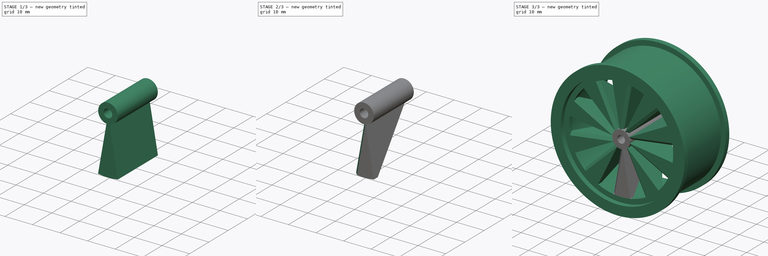
[diagram: build sequence overview — one tinted view per stage of 3, left to right]
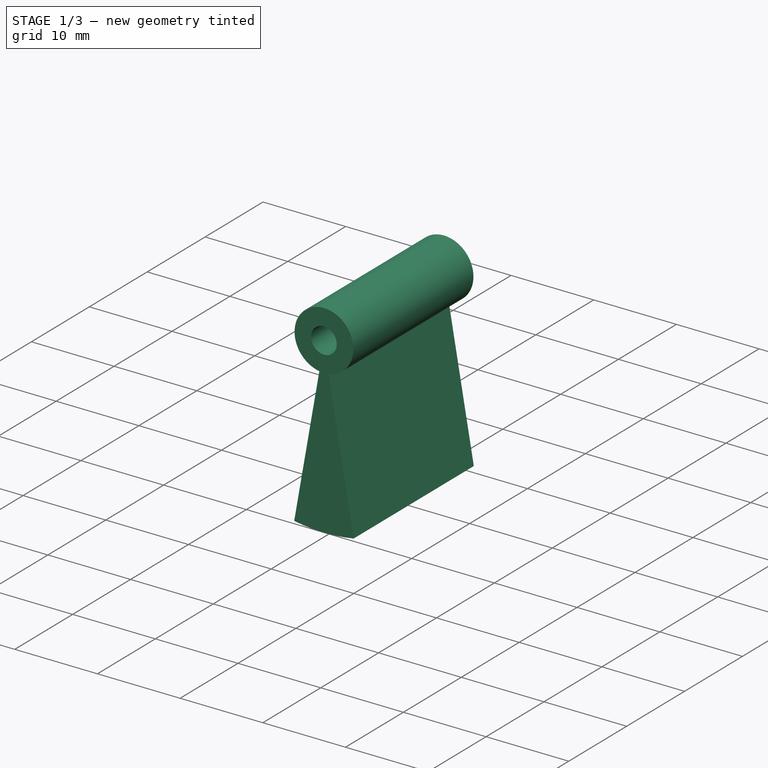
[diagram: stage 1 of 3 — iso view after this stage's code; geometry added in this stage tinted green]
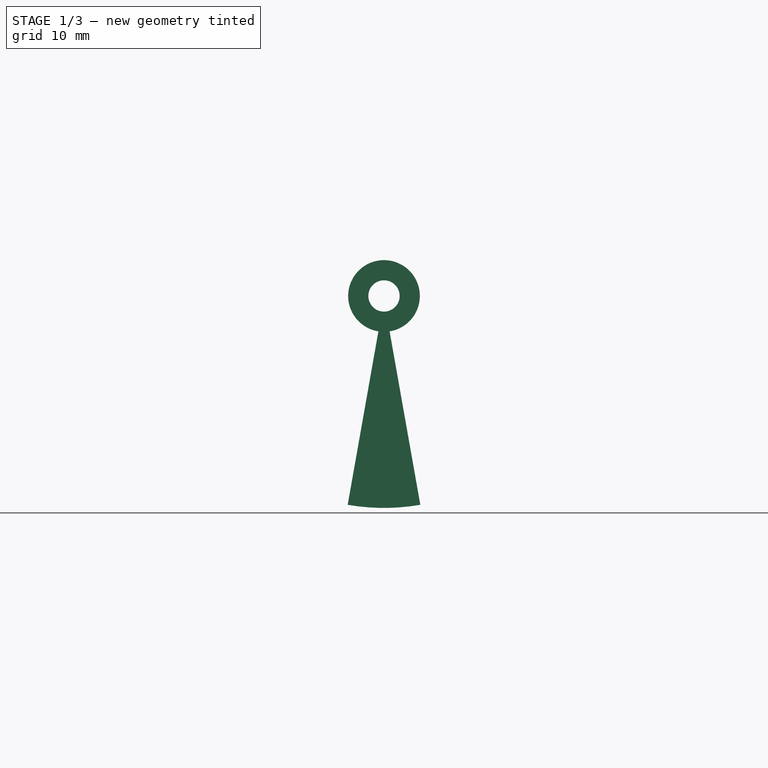
[diagram: stage 1 of 3 — front view after this stage's code; geometry added in this stage tinted green]
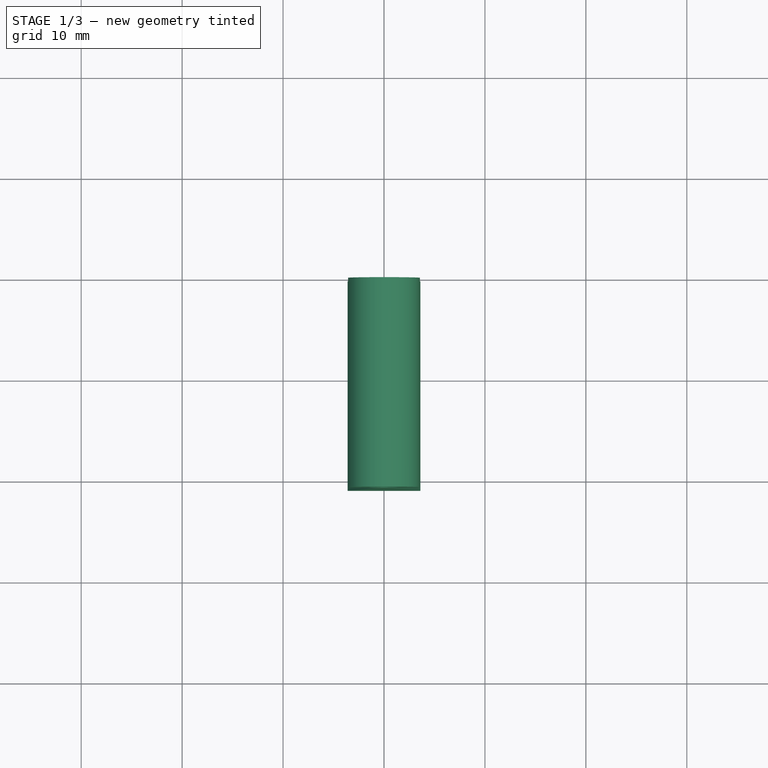
[diagram: stage 1 of 3 — top view after this stage's code; geometry added in this stage tinted green]
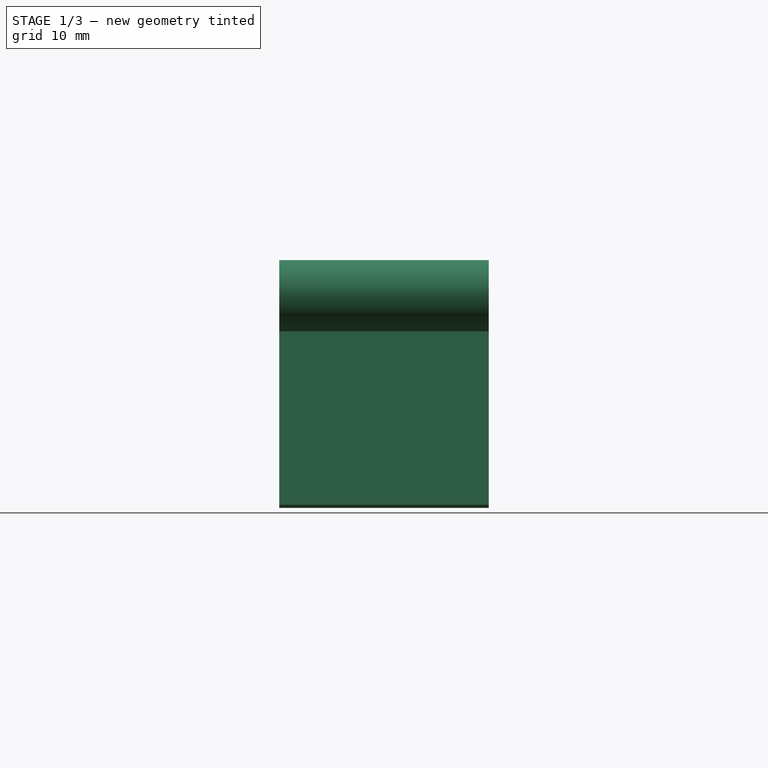
[diagram: stage 1 of 3 — right view after this stage's code; geometry added in this stage tinted green]
FCSTD DOCUMENT  (FreeCAD 1.0R39285 (Git))
Label: UncoupledWheel
License: All rights reserved
LicenseURL: https://en.wikipedia.org/wiki/All_rights_reserved
objects: Sketcher::SketchObject×4, App::VarSet×3, PartDesign::Revolution×2, PartDesign::Body×2, PartDesign::Plane×1, PartDesign::Pad×1, PartDesign::CoordinateSystem×1, PartDesign::Groove×1, PartDesign::Chamfer×1, PartDesign::PolarPattern×1, App::Part×1
note: 29 computed .brp shape members not serialized (recipe doc carries the construction recipe); baked Part::Feature solids carry a one-line shape summary decoded from their .brp

FEATURE [PartDesign::Body] Body  label="WheelRimBody"
  AllowCompound = true
  Group = -> [Sketch,Revolution]
  Origin = -> Origin
  Tip = -> Revolution
FEATURE [Sketcher::SketchObject] Sketch002  label="AxleMountProfileSketch"
  ArcFitTolerance = 1e-06
  AttachmentSupport = -> [YZ_Plane001]
  FullyConstrained = true
  MakeInternals = false
  MapMode = 5
  Placement = pos=(0,0,0) rot=(0.57735,0.57735,0.57735;2.0944rad)
  expr: Constraints[10] = <<WheelDimensions>>.AxleHoleDiameter / 2
  expr: Constraints[11] = <<WheelDimensions>>.TireWidth / 2
  expr: Constraints[8] = <<WheelDimensions>>.AxleMountDepth
  expr: Constraints[9] = <<WheelDimensions>>.WallThickness
  sketch-geometry (4):
    g0: LineSegment StartX=-10.875 StartY=1.55 StartZ=0 EndX=9.875 EndY=1.55 EndZ=0
    g1: LineSegment StartX=9.875 StartY=1.55 StartZ=0 EndX=9.875 EndY=3.55 EndZ=0
    g2: LineSegment StartX=9.875 StartY=3.55 StartZ=0 EndX=-10.875 EndY=3.55 EndZ=0
    g3: LineSegment StartX=-10.875 StartY=3.55 StartZ=0 EndX=-10.875 EndY=1.55 EndZ=0
  constraints (12):
    c: Coincident(g0,g1)
    c: Coincident(g1,g2)
    c: Coincident(g2,g3)
    c: Coincident(g3,g0)
    c: Horizontal(g0)
    c: Horizontal(g2)
    c: Vertical(g1)
    c: Vertical(g3)
    c: DistanceX(g0,g0) = 20.75
    c: DistanceY(g1,g1) = 2
    c: DistanceY(g-1,g0) = 1.55
    c: DistanceX(g0,g-1) = 10.875
FEATURE [PartDesign::Revolution] Revolution001  label="AxleMountRevolution"
  Angle = 360
  Angle2 = 60
  Axis = (1e-16,1,-1e-16)
  Base = (0,0,0)
  Placement = pos=(0,0,0) rot=(1,1,1;2.0944rad)
  Profile = -> Sketch002
  ReferenceAxis = -> Y_Axis001
  Refine = true
  Suppressed = false
  Type = 0
FEATURE [PartDesign::Plane] DatumPlane  label="SpokeDatumPlane"
  AttachmentSupport = -> [Revolution001]
  Length = 60
  MapMode = 5
  Placement = pos=(-1.2e-15,-10.875,4.8e-15) rot=(0.57735,0.57735,-0.57735;2.0944rad)
  ResizeMode = 0
  Width = 60
FEATURE [Sketcher::SketchObject] Sketch001  label="SpokeSketch"
  ArcFitTolerance = 1e-06
  AttachmentSupport = -> [DatumPlane]
  FullyConstrained = true
  MakeInternals = false
  MapMode = 5
  Placement = pos=(-1.2e-15,-10.875,4.8e-15) rot=(0.57735,0.57735,-0.57735;2.0944rad)
  expr: Constraints[10] = <<WheelDimensions>>.SpokeWidthRim / 2
  expr: Constraints[11] = <<WheelDimensions>>.InnerDiameter / 2 - <<WheelDimensions>>.SpokeRimAttachmentHeight
  expr: Constraints[6] = <<WheelDimensions>>.AxleGuideTubeDiameter
  expr: Constraints[7] = <<WheelDimensions>>.SpokeWidthBase
  expr: Constraints[8] = <<WheelDimensions>>.SpokeWidthRim
  expr: Constraints[9] = <<WheelDimensions>>.SpokeWidthBase / 2
  sketch-geometry (4):
    g0: ArcOfCircle CenterX=0 CenterY=0 CenterZ=0 NormalX=0 NormalY=0 NormalZ=1 AngleXU=0 Radius=21 StartAngle=6.111 EndAngle=6.45537
    g1: ArcOfCircle CenterX=0 CenterY=0 CenterZ=0 NormalX=0 NormalY=0 NormalZ=1 AngleXU=0 Radius=3.55 StartAngle=6.12611 EndAngle=6.44026
    g2: LineSegment StartX=3.50629 StartY=0.555342 StartZ=0 EndX=20.6895 EndY=3.59799 EndZ=0
    g3: LineSegment StartX=3.50629 StartY=-0.555342 StartZ=0 EndX=20.6895 EndY=-3.59799 EndZ=0
  constraints (12):
    c: Coincident(g0,g-1)
    c: Coincident(g1,g0)
    c: Coincident(g2,g1)
    c: Coincident(g2,g0)
    c: Coincident(g3,g1)
    c: Coincident(g3,g0)
    c: Diameter(g1) = 7.1
    c: DistanceY(g1,g1) = 1.11068
    c: DistanceY(g0,g0) = 7.19599
    c: DistanceY(g-1,g1) = 0.555342
    c: DistanceY(g-1,g0) = 3.59799
    c: Radius(g0) = 21
FEATURE [PartDesign::Pad] Pad  label="SpokePad"
  BaseFeature = -> Revolution001
  Direction = (0,-1,0)
  Length = 20.75
  Length2 = 10
  Placement = pos=(0,0,0) rot=(1,1,1;2.0944rad)
  Profile = -> Sketch001
  ReferenceAxis = -> Sketch001 [N_Axis]
  Refine = true
  Reversed = true
  Suppressed = false
  Type = 0
  expr: Length = <<WheelDimensions>>.SpokeThicknessBase
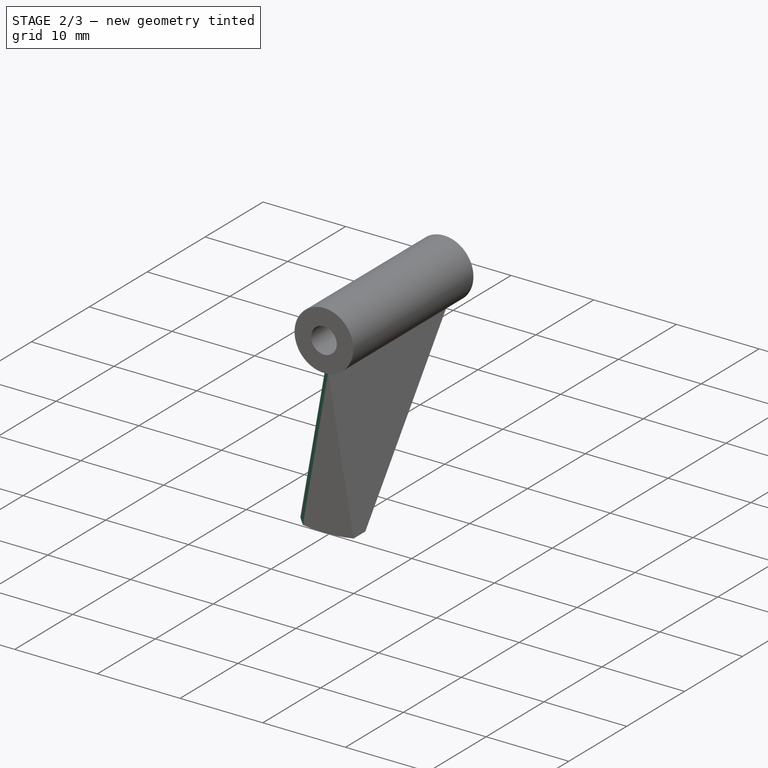
[diagram: stage 2 of 3 — iso view after this stage's code; geometry added in this stage tinted green]
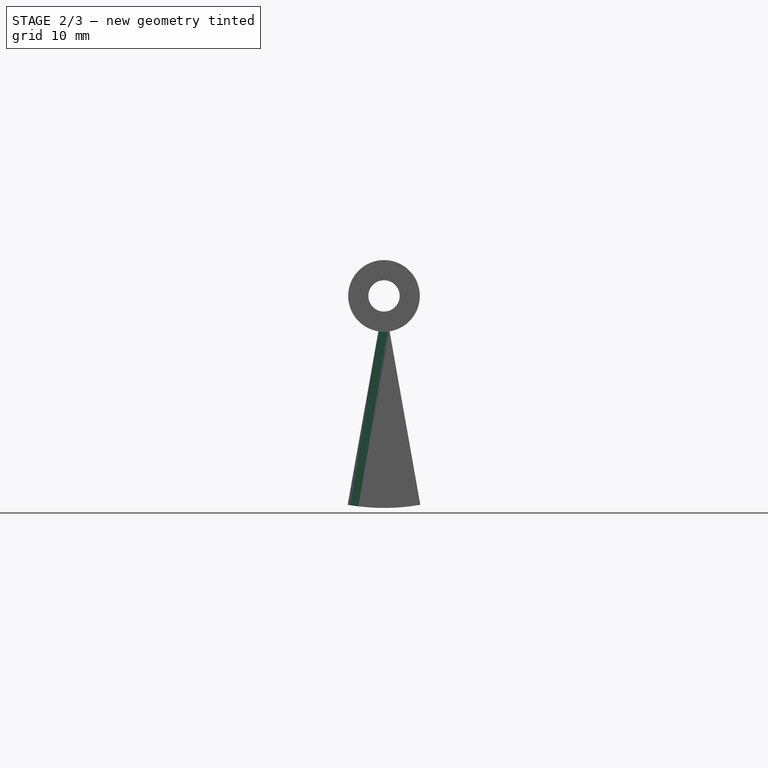
[diagram: stage 2 of 3 — front view after this stage's code; geometry added in this stage tinted green]
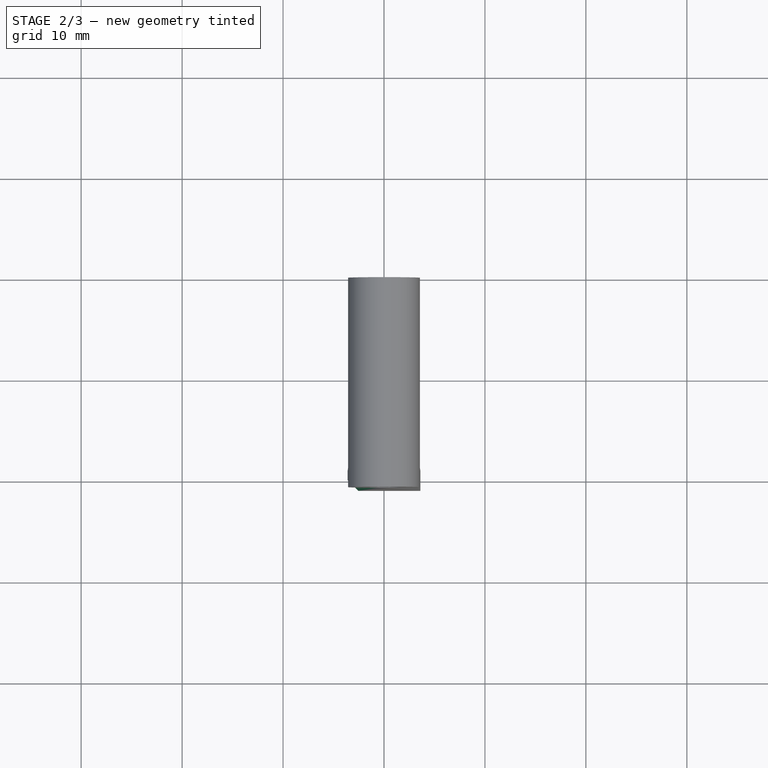
[diagram: stage 2 of 3 — top view after this stage's code; geometry added in this stage tinted green]
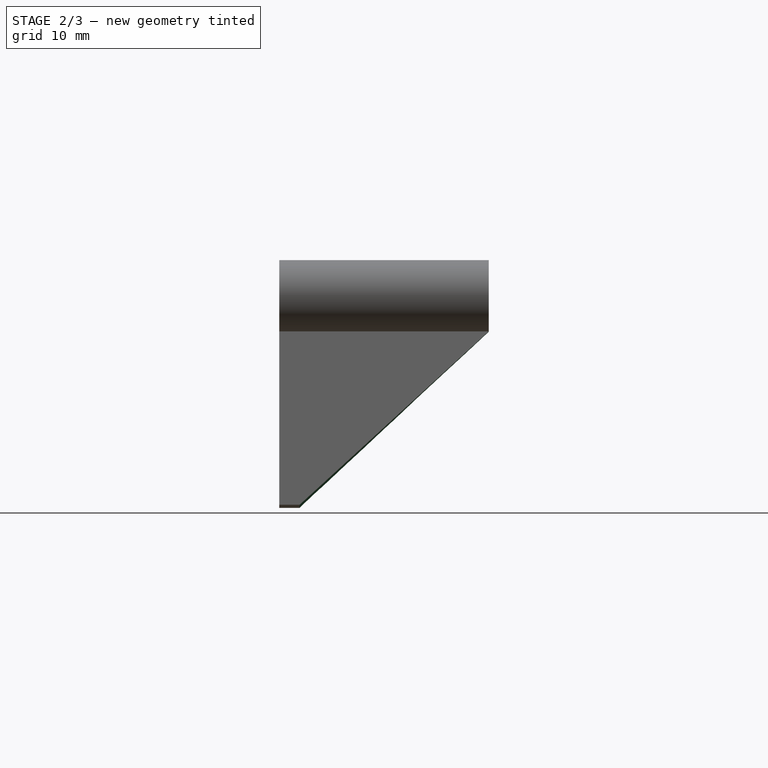
[diagram: stage 2 of 3 — right view after this stage's code; geometry added in this stage tinted green]
FEATURE [PartDesign::CoordinateSystem] Local_CS  label="SpokeGradientCS"
  AttacherType = Attacher::AttachEngine3D
  AttachmentSupport = -> [Pad]
  MapMode = 6
  Placement = pos=(0.555342,9.875,-3.50629) rot=(0,1,0;1.39554rad)
FEATURE [Sketcher::SketchObject] Sketch003  label="SpokeGradientSketch"
  ArcFitTolerance = 1e-06
  AttachmentSupport = -> [Local_CS]
  FullyConstrained = true
  MakeInternals = false
  MapMode = 2
  Placement = pos=(0.555342,9.875,-3.50629) rot=(0,1,0;1.39554rad)
  expr: Constraints[6] = <<WheelDimensions>>.SpokeThicknessBase - <<WheelDimensions>>.SpokeThicknessRim
  expr: Constraints[7] = <<WheelDimensions>>.SpokeLength + 0.01 mm
  sketch-geometry (3):
    g0: LineSegment StartX=0 StartY=0 StartZ=0 EndX=17.46 EndY=-18.75 EndZ=0
    g1: LineSegment StartX=17.46 StartY=-18.75 StartZ=0 EndX=17.46 EndY=0 EndZ=0
    g2: LineSegment StartX=0 StartY=0 StartZ=0 EndX=17.46 EndY=0 EndZ=0
  constraints (8):
    c: Coincident(g0,g-1)
    c: Coincident(g1,g0)
    c: Vertical(g1)
    c: Coincident(g2,g0)
    c: Coincident(g2,g1)
    c: Horizontal(g2)
    c: DistanceY(g1,g1) = 18.75
    c: DistanceX(g2,g2) = 17.46
FEATURE [PartDesign::Groove] Groove  label="SpokeGradientGroove"
  Angle = 360
  Angle2 = 60
  Axis = (1e-16,1,-1e-16)
  Base = (0,0,0)
  BaseFeature = -> Pad
  Placement = pos=(0,0,0) rot=(1,1,1;2.0944rad)
  Profile = -> Sketch003
  ReferenceAxis = -> Y_Axis001
  Refine = true
  Suppressed = false
  Type = 0
FEATURE [PartDesign::Chamfer] Chamfer
  Angle = 45
  Base = -> Groove [Edge1]
  BaseFeature = -> Groove
  ChamferType = 0
  FlipDirection = false
  Placement = pos=(0,0,0) rot=(1,1,1;2.0944rad)
  Refine = true
  Size = 1.06068
  Size2 = 1
  SupportTransform = false
  Suppressed = false
  UseAllEdges = false
  expr: Size = min(<<WheelDimensions>>.SpokeWidthBase - 0.05 mm; <<WheelDimensions>>.SpokeThicknessRim)
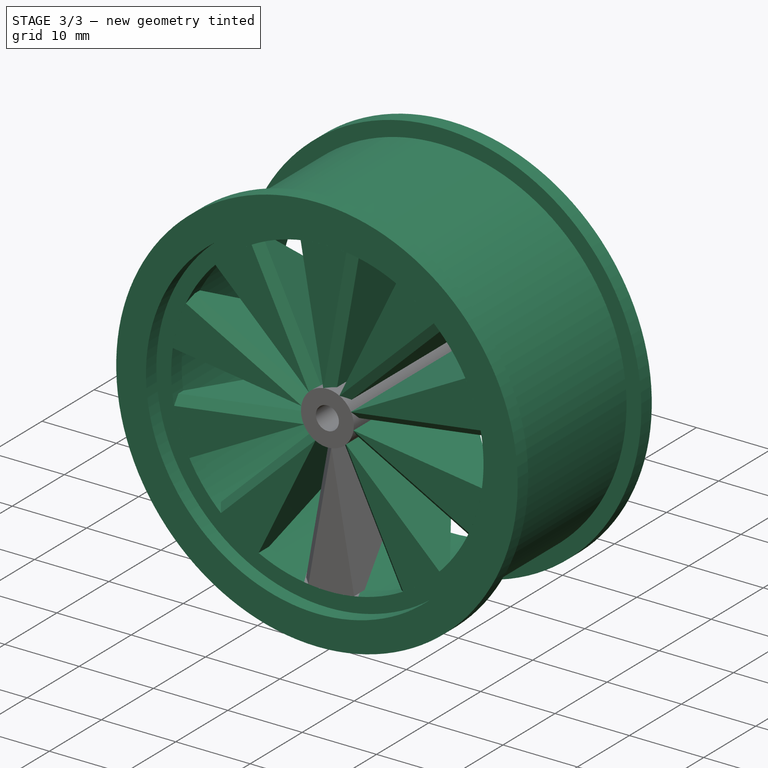
[diagram: stage 3 of 3 — iso view after this stage's code; geometry added in this stage tinted green]
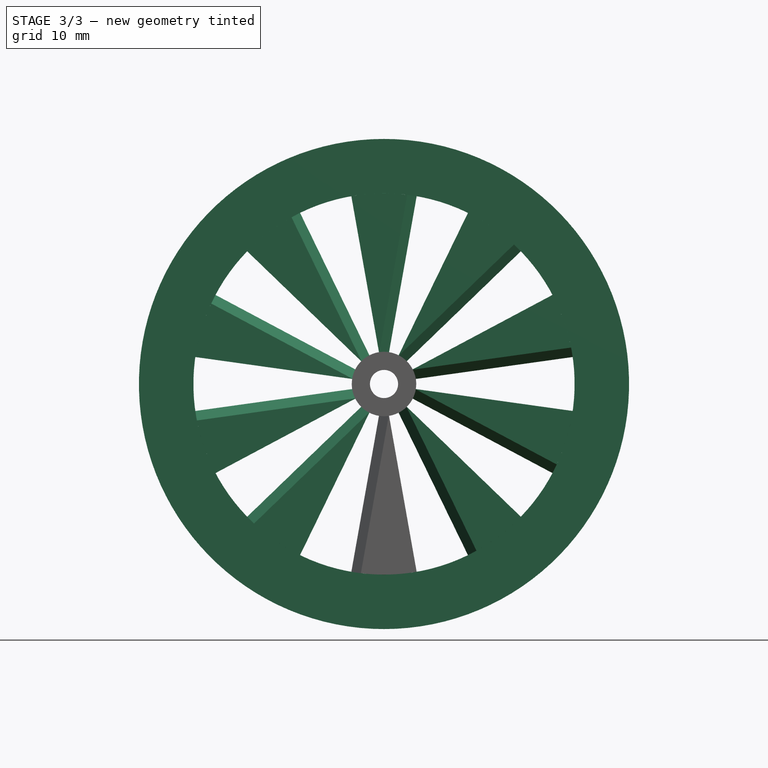
[diagram: stage 3 of 3 — front view after this stage's code; geometry added in this stage tinted green]
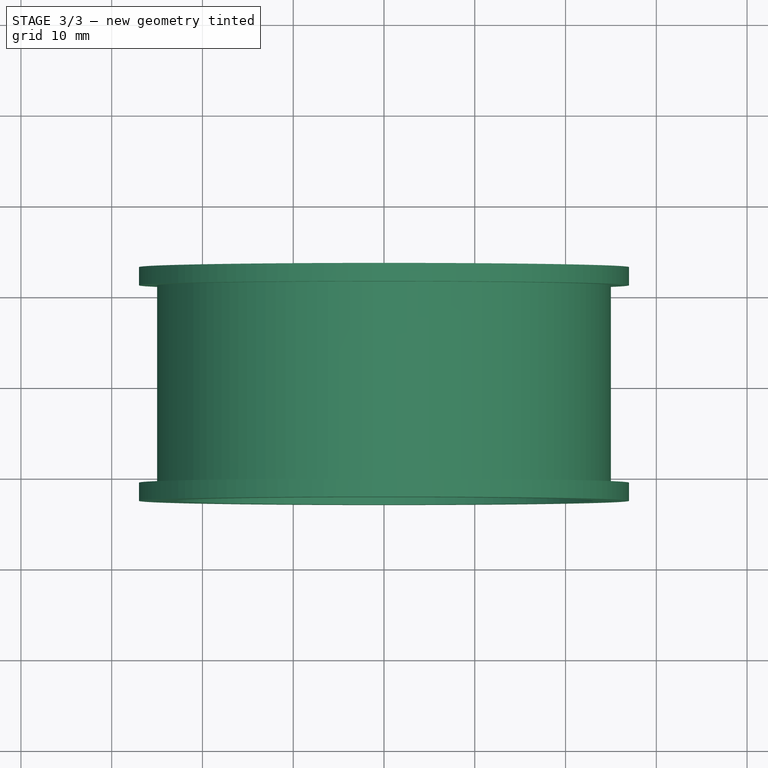
[diagram: stage 3 of 3 — top view after this stage's code; geometry added in this stage tinted green]
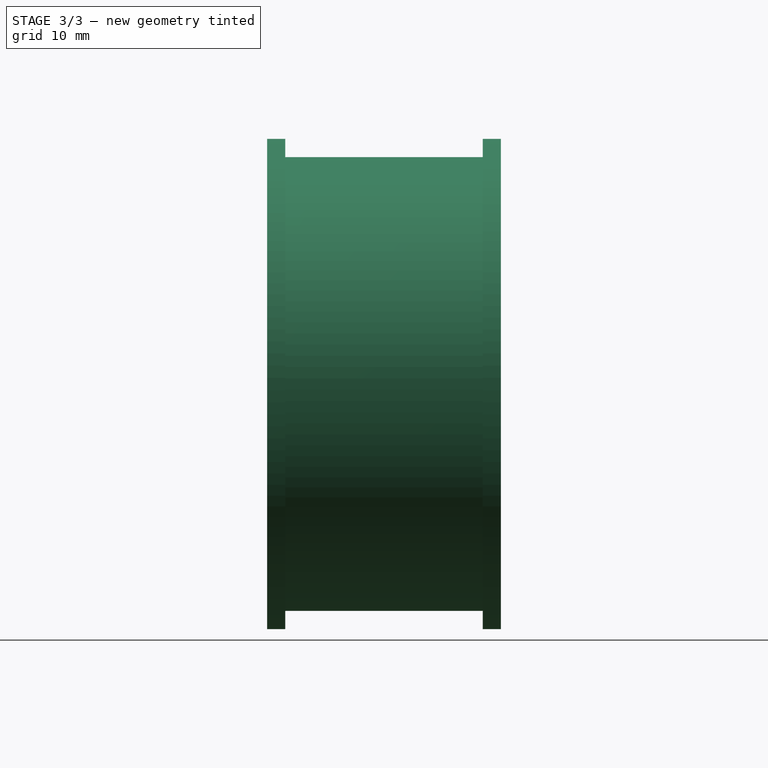
[diagram: stage 3 of 3 — right view after this stage's code; geometry added in this stage tinted green]
FEATURE [App::VarSet] VarSet  label="Parts"
  AxleBoltSize = 3
FEATURE [App::VarSet] VarSet001  label="WheelDimensions"
  AxleCircumference = 22.3053
  AxleGuideTubeDiameter = 7.1
  AxleGuideTubeRadius = 3.55
  AxleHoleDiameter = 3.1
  AxleMountDepth = 20.75
  InnerCircumference = 144.513
  InnerDiameter = 46
  OuterDiameter = 48
  SpokeArcLengthBase = 1.11527
  SpokeArcLengthRim = 7.22566
  SpokeCount = 10
  SpokeLength = 17.45
  SpokeRimAttachmentHeight = 2
  SpokeRimAttachmentWidth = 2
  SpokeSpacingPercentBase = 0.5
  SpokeSpacingPercentRim = 0.5
  SpokeThetaBase = 18
  SpokeThetaRim = 18
  SpokeThicknessBase = 20.75
  SpokeThicknessRim = 2
  SpokeWidthBase = 1.11068
  SpokeWidthRim = 7.19599
  TireInnerDiameter = 48
  TireLipHeight = 2
  TireWidth = 21.75
  WallThickness = 2
  expr: AxleCircumference = AxleGuideTubeDiameter * pi
  expr: AxleGuideTubeDiameter = AxleHoleDiameter + 2 * WallThickness
  expr: AxleGuideTubeRadius = AxleGuideTubeDiameter / 2
  expr: AxleHoleDiameter = <<Parts>>.AxleBoltSize + 0.1 mm
  expr: AxleMountDepth = TireWidth - 1 mm
  expr: InnerCircumference = InnerDiameter * pi
  expr: InnerDiameter = OuterDiameter - WallThickness
  expr: OuterDiameter = TireInnerDiameter
  expr: SpokeArcLengthBase = AxleCircumference / SpokeCount - SpokeSpacingPercentBase * AxleCircumference / SpokeCount
  expr: SpokeArcLengthRim = InnerCircumference / SpokeCount - SpokeSpacingPercentRim * InnerCircumference / SpokeCount
  expr: SpokeLength = InnerDiameter / 2 - SpokeRimAttachmentHeight - AxleGuideTubeRadius
  expr: SpokeThetaBase = 180 * SpokeArcLengthBase / (pi * AxleGuideTubeRadius)
  expr: SpokeThetaRim = 180 * SpokeArcLengthRim / (pi * InnerDiameter / 2)
  expr: SpokeThicknessBase = AxleMountDepth
  expr: SpokeThicknessRim = SpokeRimAttachmentWidth
  expr: SpokeWidthBase = sqrt(2 * AxleGuideTubeRadius ^ 2 - 2 * AxleGuideTubeRadius ^ 2 * cos(SpokeThetaBase))
  expr: SpokeWidthRim = sqrt(2 * (InnerDiameter / 2) ^ 2 - 2 * (InnerDiameter / 2) ^ 2 * cos(SpokeThetaRim))
FEATURE [App::VarSet] VarSet002  label="Calculations"
  Root2Over2 = 0.707107
  expr: Root2Over2 = sqrt(2) / 2
FEATURE [Sketcher::SketchObject] Sketch  label="OuterRimProfileSketch"
  ArcFitTolerance = 1e-06
  AttachmentSupport = -> [YZ_Plane]
  FullyConstrained = true
  MakeInternals = false
  MapMode = 5
  Placement = pos=(0,0,0) rot=(0.57735,0.57735,0.57735;2.0944rad)
  expr: Constraints[14] = <<WheelDimensions>>.WallThickness
  expr: Constraints[15] = <<WheelDimensions>>.TireLipHeight
  expr: Constraints[17] = <<WheelDimensions>>.WallThickness
  expr: Constraints[18] = <<WheelDimensions>>.InnerDiameter / 2
  expr: Constraints[1] = <<WheelDimensions>>.TireWidth
  expr: Constraints[30] = <<WheelDimensions>>.SpokeRimAttachmentWidth
  expr: Constraints[33] = <<WheelDimensions>>.SpokeRimAttachmentHeight
  sketch-geometry (12):
    g0: LineSegment StartX=-10.875 StartY=25 StartZ=0 EndX=10.875 EndY=25 EndZ=0
    g1: LineSegment StartX=10.875 StartY=25 StartZ=0 EndX=10.875 EndY=27 EndZ=0
    g2: LineSegment StartX=10.875 StartY=27 StartZ=0 EndX=12.875 EndY=27 EndZ=0
    g3: LineSegment StartX=12.875 StartY=27 StartZ=0 EndX=12.875 EndY=23 EndZ=0
    g4: LineSegment StartX=-10.875 StartY=25 StartZ=0 EndX=-10.875 EndY=27 EndZ=0
    g5: LineSegment StartX=-10.875 StartY=27 StartZ=0 EndX=-12.875 EndY=27 EndZ=0
    g6: LineSegment StartX=-12.875 StartY=27 StartZ=0 EndX=-12.875 EndY=23 EndZ=0
    g7: LineSegment StartX=12.875 StartY=23 StartZ=0 EndX=-8.875 EndY=23 EndZ=0
    g8: LineSegment StartX=-12.875 StartY=23 StartZ=0 EndX=-10.875 EndY=23 EndZ=0
    g9: LineSegment StartX=-10.875 StartY=23 StartZ=0 EndX=-10.875 EndY=21 EndZ=0
    g10: LineSegment StartX=-10.875 StartY=21 StartZ=0 EndX=-8.875 EndY=21 EndZ=0
    g11: LineSegment StartX=-8.875 StartY=21 StartZ=0 EndX=-8.875 EndY=23 EndZ=0
  constraints (35):
    c: Symmetric(g0,g0,g-2)
    c: DistanceX(g0,g0) = 21.75
    c: Coincident(g1,g0)
    c: Vertical(g1)
    c: Coincident(g2,g1)
    c: Horizontal(g2)
    c: Coincident(g3,g2)
    c: Vertical(g3)
    c: Coincident(g4,g0)
    c: Vertical(g4)
    c: Coincident(g5,g4)
    c: Horizontal(g5)
    c: Coincident(g6,g5)
    c: Vertical(g6)
    c: DistanceX(g2,g2) = 2
    c: DistanceY(g0,g1) = 2
    c: Equal(g1,g4)
    c: DistanceY(g3,g0) = 2
    c: DistanceY(g-1,g3) = 23
    c: Coincident(g7,g3)
    c: Horizontal(g7)
    c: Coincident(g8,g6)
    c: Horizontal(g8)
    c: Coincident(g9,g8)
    c: Vertical(g9)
    c: Coincident(g10,g9)
    c: Horizontal(g10)
    c: Coincident(g11,g10)
    c: Coincident(g11,g7)
    c: Vertical(g11)
    c: DistanceX(g10,g10) = 2
    c: Equal(g8,g5)
    c: Equal(g5,g2)
    c: DistanceY(g9,g9) = 2
    c: Equal(g9,g11)
FEATURE [PartDesign::Revolution] Revolution  label="OuterRimRevolution"
  Angle = 360
  Angle2 = 60
  Axis = (1e-16,1,-1e-16)
  Base = (0,0,0)
  Placement = pos=(0,0,0) rot=(1,1,1;2.0944rad)
  Profile = -> Sketch
  ReferenceAxis = -> Y_Axis
  Refine = true
  Suppressed = false
  Type = 0
FEATURE [PartDesign::PolarPattern] PolarPattern
  Angle = 360
  Axis = -> Y_Axis001
  BaseFeature = -> Chamfer
  Mode = 0
  Occurrences = 10
  Offset = 120
  Placement = pos=(0,0,0) rot=(1,1,1;2.0944rad)
  Refine = true
  Suppressed = false
  TransformMode = 1
  expr: Occurrences = <<WheelDimensions>>.SpokeCount
FEATURE [PartDesign::Body] Body001  label="WheelAxleAndSpokesBody"
  AllowCompound = false
  Group = -> [Sketch002,Revolution001,DatumPlane,Sketch001,Pad,Local_CS,Sketch003,Groove,Chamfer,PolarPattern]
  Origin = -> Origin001
  Tip = -> PolarPattern
FEATURE [App::Part] Part  label="Wheel"
  Group = -> [Body,Body001]
  Origin = -> Origin002
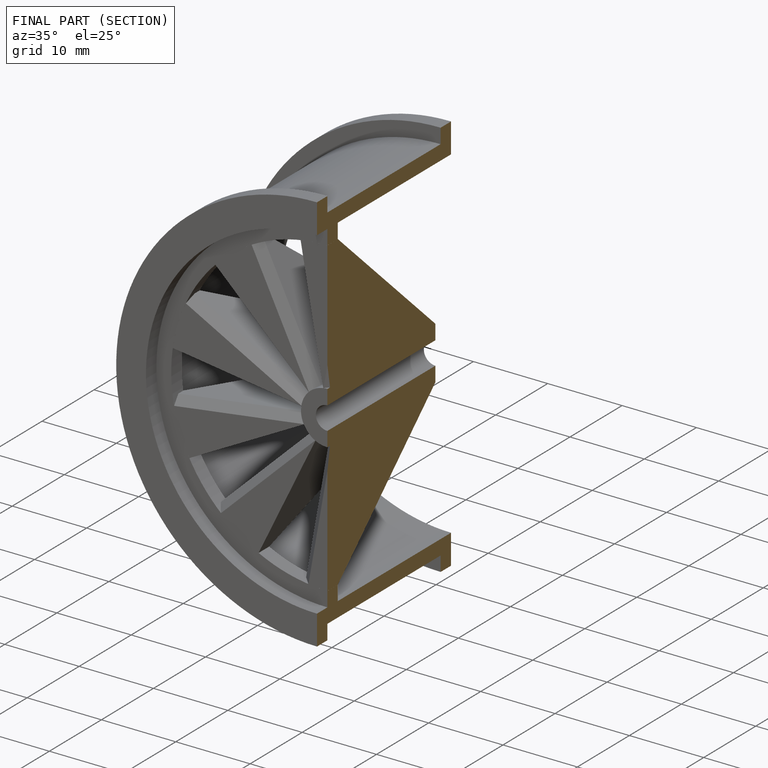
[diagram: finished part — half-section view (interior)]
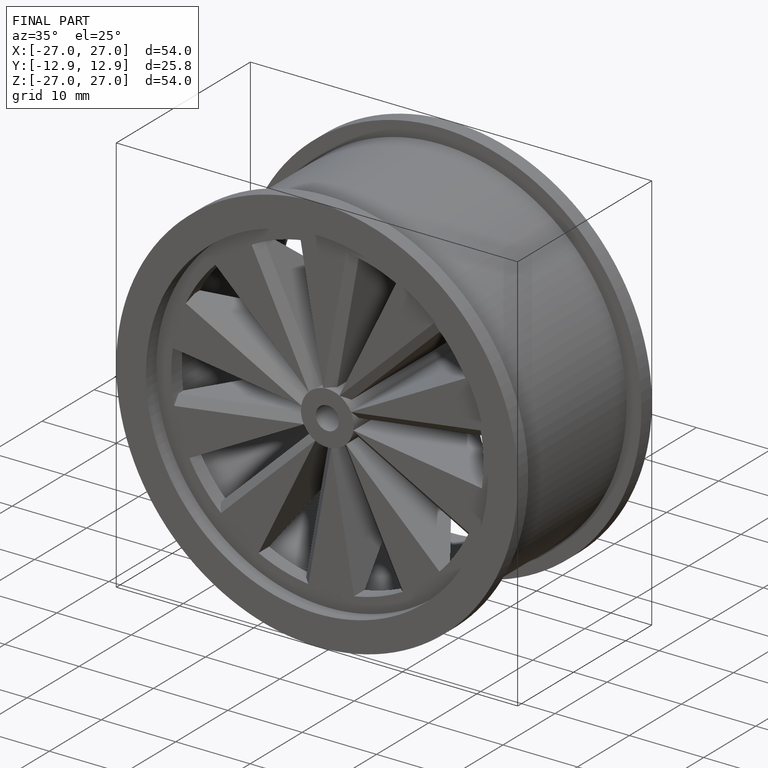
[diagram: finished part — iso view with bounding-box wireframe]
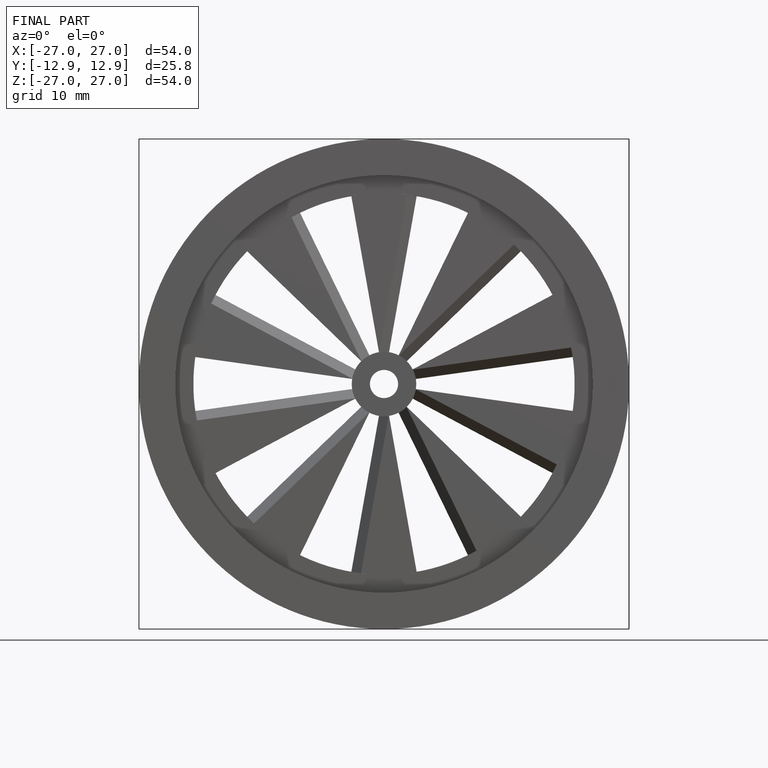
[diagram: finished part — front view with bounding-box wireframe]
